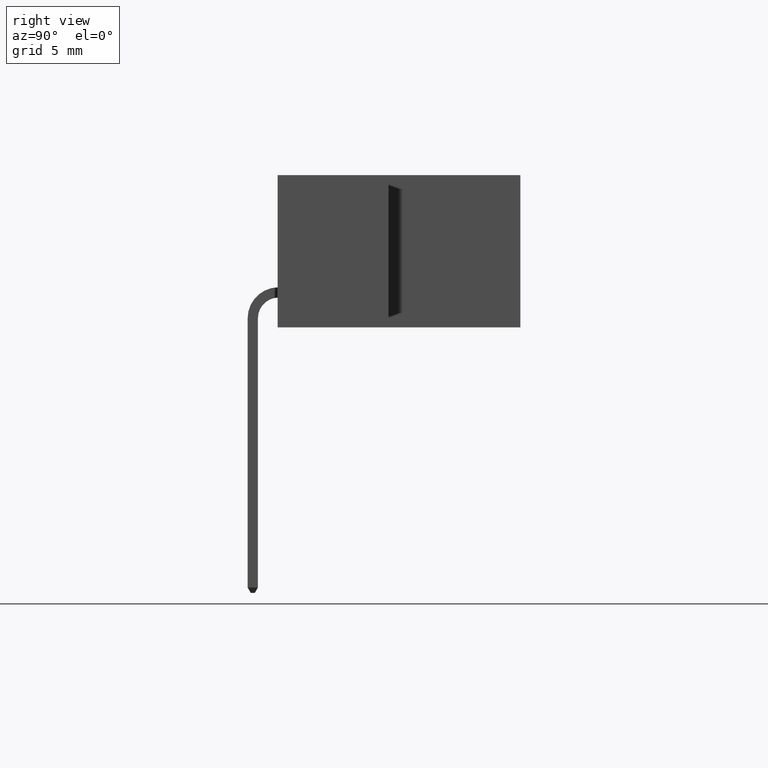
[diagram: clean part render]
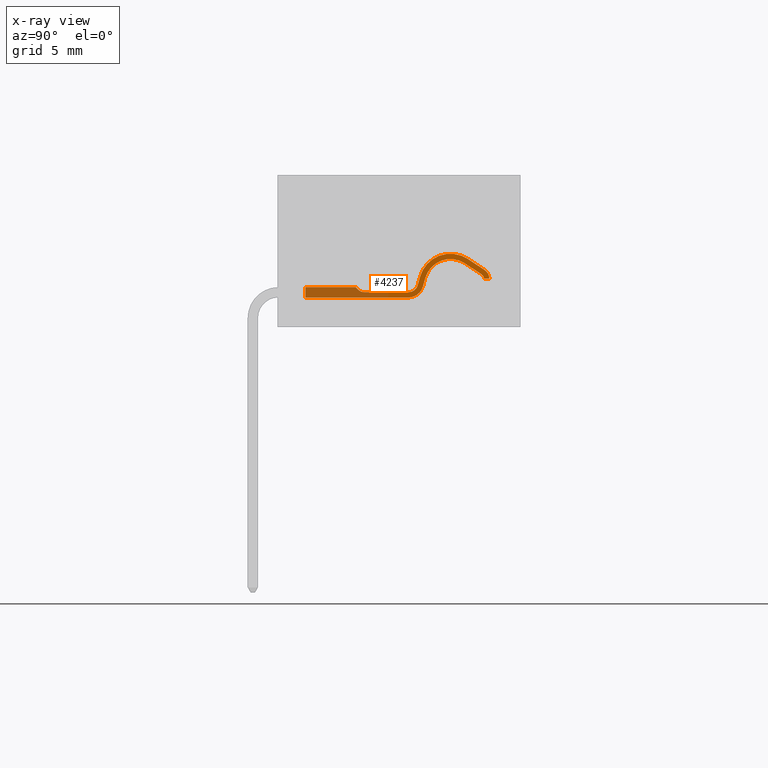
[diagram: x-ray — body ghosted, one internal face saturated and labeled with its STEP entity id]
A machine part, right view, then the same camera in x-ray: the body is ghosted and one INTERNAL B-rep face — a face not visible from any outside direction — is saturated and labeled: STEP entity #4237.
In plain terms, the highlighted planar face has unit normal (-1, 0, 0).
Its self-contained STEP definition (entity closure, byte-faithful):
#11 = CIRCLE ( 'NONE', #2944, 0.07649999999999998500 ) ;
#216 = ORIENTED_EDGE ( 'NONE', *, *, #6210, .F. ) ;
#237 = ORIENTED_EDGE ( 'NONE', *, *, #6021, .T. ) ;
#323 = VERTEX_POINT ( 'NONE', #4881 ) ;
#376 = DIRECTION ( 'NONE',  ( 1.000000000000000000, -4.105037543671027800E-013, 1.638563879710457600E-012 ) ) ;
#410 = DIRECTION ( 'NONE',  ( -1.000000000000000000, 4.103939916561599100E-013, -1.638611603453458800E-012 ) ) ;
#416 = VECTOR ( 'NONE', #5714, 39.37007874015748900 ) ;
#421 = DIRECTION ( 'NONE',  ( 1.638611603453288400E-012, -1.027382594658554100E-014, 1.000000000000000000 ) ) ;
#448 = CARTESIAN_POINT ( 'NONE',  ( 0.3300000000002101300, 0.01249999999986125900, -0.02499999999839900800 ) ) ;
#480 = CARTESIAN_POINT ( 'NONE',  ( 0.1860365644725496500, 0.1064634276654713200, -0.02500000000062109100 ) ) ;
#503 = ORIENTED_EDGE ( 'NONE', *, *, #5555, .F. ) ;
#524 = VERTEX_POINT ( 'NONE', #6538 ) ;
#531 = CARTESIAN_POINT ( 'NONE',  ( 0.3299999999999715900, 0.04899999999983343400, -0.02499999999829847400 ) ) ;
#721 = CARTESIAN_POINT ( 'NONE',  ( 0.1451768499526380200, 0.07965726579265157400, -0.02499999999847331300 ) ) ;
#726 = CARTESIAN_POINT ( 'NONE',  ( 0.2948401884420190400, 0.03920011983824214100, -0.02499999999818537700 ) ) ;
#872 = VERTEX_POINT ( 'NONE', #4946 ) ;
#875 = ORIENTED_EDGE ( 'NONE', *, *, #2604, .F. ) ;
#945 = DIRECTION ( 'NONE',  ( -1.000000000000000000, 4.104095712703949100E-013, -1.638476423977801500E-012 ) ) ;
#969 = DIRECTION ( 'NONE',  ( -1.638611603453463000E-012, -1.027382594524058700E-014, 1.000000000000000000 ) ) ;
#1003 = ORIENTED_EDGE ( 'NONE', *, *, #5497, .T. ) ;
#1010 = CARTESIAN_POINT ( 'NONE',  ( 0.3016911118967255400, 0.06303947485922985200, -0.02499999999918796300 ) ) ;
#1094 = ORIENTED_EDGE ( 'NONE', *, *, #5470, .T. ) ;
#1101 = CARTESIAN_POINT ( 'NONE',  ( 0.2891684392868649200, 0.05954910658250295300, -0.02499999999831923800 ) ) ;
#1181 = CARTESIAN_POINT ( 'NONE',  ( 0.3299999999999715900, 0.04899999999983343400, -0.02499999999829847400 ) ) ;
#1188 = LINE ( 'NONE', #5304, #2520 ) ;
#1197 = CARTESIAN_POINT ( 'NONE',  ( 0.09500000000039858500, 0.02500000000002944300, -0.02499999999791328500 ) ) ;
#1215 = VECTOR ( 'NONE', #7378, 39.37007874015748100 ) ;
#1400 = CIRCLE ( 'NONE', #2966, 0.02350000000000003500 ) ;
#1426 = LINE ( 'NONE', #2462, #1215 ) ;
#1446 = VERTEX_POINT ( 'NONE', #3297 ) ;
#1492 = VECTOR ( 'NONE', #7321, 39.37007874015748100 ) ;
#1591 = CIRCLE ( 'NONE', #2979, 0.02172792206135780400 ) ;
#1665 = ORIENTED_EDGE ( 'NONE', *, *, #5467, .T. ) ;
#1681 = ORIENTED_EDGE ( 'NONE', *, *, #5388, .T. ) ;
#1724 = CARTESIAN_POINT ( 'NONE',  ( 0.2891684392868649200, 0.05954910658250295300, -0.02499999999831923800 ) ) ;
#1875 = CARTESIAN_POINT ( 'NONE',  ( 0.4372132034357108500, 0.04722792206117109500, -0.02499999999768435700 ) ) ;
#1879 = VERTEX_POINT ( 'NONE', #726 ) ;
#1929 = DIRECTION ( 'NONE',  ( -1.638611603453288400E-012, 1.027382594658554100E-014, -1.000000000000000000 ) ) ;
#1968 = DIRECTION ( 'NONE',  ( -1.000000000000000000, 4.104494057409937700E-013, -1.638638251514609500E-012 ) ) ;
#2022 = VERTEX_POINT ( 'NONE', #480 ) ;
#2171 = CARTESIAN_POINT ( 'NONE',  ( 0.4582132034356362600, 0.03749999999975776200, -0.02499999999815887700 ) ) ;
#2246 = ORIENTED_EDGE ( 'NONE', *, *, #5407, .F. ) ;
#2286 = DIRECTION ( 'NONE',  ( 1.638611603453288400E-012, -1.027382594658554100E-014, 1.000000000000000000 ) ) ;
#2368 = DIRECTION ( 'NONE',  ( 1.000000000000000000, -4.104788723356833500E-013, 1.638641014007862000E-012 ) ) ;
#2431 = ORIENTED_EDGE ( 'NONE', *, *, #5485, .T. ) ;
#2462 = CARTESIAN_POINT ( 'NONE',  ( 0.3300000000002101300, 0.01249999999986125900, -0.02499999999839900800 ) ) ;
#2520 = VECTOR ( 'NONE', #410, 39.37007874015748100 ) ;
#2539 = DIRECTION ( 'NONE',  ( 0.2684898674432342800, -0.9632825084471918800, 4.498472090303872900E-013 ) ) ;
#2595 = ORIENTED_EDGE ( 'NONE', *, *, #5554, .T. ) ;
#2604 = EDGE_CURVE ( 'NONE', #1879, #5158, #4109, .T. ) ;
#2918 = AXIS2_PLACEMENT_3D ( 'NONE', #3674, #6452, #945 ) ;
#2919 = AXIS2_PLACEMENT_3D ( 'NONE', #3607, #3349, #6185 ) ;
#2940 = LINE ( 'NONE', #721, #4441 ) ;
#2944 = AXIS2_PLACEMENT_3D ( 'NONE', #6384, #1929, #6074 ) ;
#2961 = EDGE_CURVE ( 'NONE', #1446, #5471, #5707, .T. ) ;
#2964 = CARTESIAN_POINT ( 'NONE',  ( 0.3300000000000456500, 0.02549999999988431300, -0.02499999999797939500 ) ) ;
#2966 = AXIS2_PLACEMENT_3D ( 'NONE', #531, #421, #376 ) ;
#2979 = AXIS2_PLACEMENT_3D ( 'NONE', #1875, #3211, #6601 ) ;
#2988 = ORIENTED_EDGE ( 'NONE', *, *, #3909, .F. ) ;
#3047 = ORIENTED_EDGE ( 'NONE', *, *, #5511, .T. ) ;
#3064 = AXIS2_PLACEMENT_3D ( 'NONE', #3768, #3761, #1968 ) ;
#3117 = DIRECTION ( 'NONE',  ( 1.000000000000000000, -4.100356718673666700E-013, 1.638611603453452100E-012 ) ) ;
#3149 = VERTEX_POINT ( 'NONE', #1101 ) ;
#3211 = DIRECTION ( 'NONE',  ( 1.638611603453288400E-012, -1.027382594658554100E-014, 1.000000000000000000 ) ) ;
#3225 = LINE ( 'NONE', #4905, #1492 ) ;
#3261 = ORIENTED_EDGE ( 'NONE', *, *, #2961, .T. ) ;
#3284 = VERTEX_POINT ( 'NONE', #4574 ) ;
#3297 = CARTESIAN_POINT ( 'NONE',  ( 0.4582132034356362600, 0.03749999999975776200, -0.02499999999815887700 ) ) ;
#3349 = DIRECTION ( 'NONE',  ( -1.638611603453288400E-012, 1.027382594658554100E-014, -1.000000000000000000 ) ) ;
#3586 = CARTESIAN_POINT ( 'NONE',  ( 0.1462224658725554100, 0.05799999999995034800, -0.02499999999849352900 ) ) ;
#3607 = CARTESIAN_POINT ( 'NONE',  ( 0.1597132034359620700, 0.05749999999989687700, -0.02499999999926664400 ) ) ;
#3674 = CARTESIAN_POINT ( 'NONE',  ( 0.1597132034359620700, 0.05749999999989687700, -0.02499999999926664400 ) ) ;
#3761 = DIRECTION ( 'NONE',  ( -1.638611603453288400E-012, 1.027382594658554100E-014, -1.000000000000000000 ) ) ;
#3768 = CARTESIAN_POINT ( 'NONE',  ( 0.2280000000003233100, 0.04249999999984280900, -0.02499999999843834400 ) ) ;
#3846 = DIRECTION ( 'NONE',  ( 1.000000000000000000, -4.103939916561599100E-013, 1.638611603453458800E-012 ) ) ;
#3909 = EDGE_CURVE ( 'NONE', #5158, #7074, #1426, .T. ) ;
#3918 = LINE ( 'NONE', #1724, #416 ) ;
#3944 = CIRCLE ( 'NONE', #3064, 0.06350000000000001500 ) ;
#4047 = AXIS2_PLACEMENT_3D ( 'NONE', #1197, #969, #3846 ) ;
#4109 = CIRCLE ( 'NONE', #4540, 0.03650000000000000500 ) ;
#4157 = VERTEX_POINT ( 'NONE', #7774 ) ;
#4237 = ADVANCED_FACE ( 'NONE', ( #4279 ), #6606, .F. ) ;
#4240 = ORIENTED_EDGE ( 'NONE', *, *, #5514, .T. ) ;
#4279 = FACE_OUTER_BOUND ( 'NONE', #4311, .T. ) ;
#4311 = EDGE_LOOP ( 'NONE', ( #503, #2595, #5515, #4240, #3047, #1003, #2431, #1094, #1665, #237, #3261, #1681, #2988, #875, #4851, #2246, #216 ) ) ;
#4441 = VECTOR ( 'NONE', #6291, 39.37007874015748100 ) ;
#4540 = AXIS2_PLACEMENT_3D ( 'NONE', #1181, #2286, #2368 ) ;
#4574 = CARTESIAN_POINT ( 'NONE',  ( 0.3300000000000456500, 0.02549999999988431300, -0.02499999999797939500 ) ) ;
#4603 = DIRECTION ( 'NONE',  ( 1.000000000000000000, -4.103939916561603700E-013, 1.638576615646163000E-012 ) ) ;
#4719 = VERTEX_POINT ( 'NONE', #1010 ) ;
#4834 = VERTEX_POINT ( 'NONE', #5622 ) ;
#4851 = ORIENTED_EDGE ( 'NONE', *, *, #6379, .F. ) ;
#4881 = CARTESIAN_POINT ( 'NONE',  ( 0.4372132034354676000, 0.02549999999985122500, -0.02499999999777669300 ) ) ;
#4905 = CARTESIAN_POINT ( 'NONE',  ( 0.1523078912838012600, 0.06878766370564136400, -0.02499999999959828800 ) ) ;
#4946 = CARTESIAN_POINT ( 'NONE',  ( 0.3073628610519116300, 0.04269048811493035600, -0.02499999999888527500 ) ) ;
#4962 = DIRECTION ( 'NONE',  ( 4.103939916561338600E-013, -1.000000000000000000, 1.027382594658596700E-014 ) ) ;
#5158 = VERTEX_POINT ( 'NONE', #448 ) ;
#5304 = CARTESIAN_POINT ( 'NONE',  ( 0.1332132034357875200, 0.05799999999999252300, -0.02499999999870606800 ) ) ;
#5357 = VERTEX_POINT ( 'NONE', #5743 ) ;
#5388 = EDGE_CURVE ( 'NONE', #5471, #7074, #5746, .T. ) ;
#5407 = EDGE_CURVE ( 'NONE', #4834, #3149, #3944, .T. ) ;
#5467 = EDGE_CURVE ( 'NONE', #323, #4157, #1591, .T. ) ;
#5470 = EDGE_CURVE ( 'NONE', #3284, #323, #7685, .T. ) ;
#5471 = VERTEX_POINT ( 'NONE', #7398 ) ;
#5485 = EDGE_CURVE ( 'NONE', #872, #3284, #1400, .T. ) ;
#5497 = EDGE_CURVE ( 'NONE', #4719, #872, #6156, .T. ) ;
#5511 = EDGE_CURVE ( 'NONE', #2022, #4719, #11, .T. ) ;
#5514 = EDGE_CURVE ( 'NONE', #5532, #2022, #2940, .T. ) ;
#5515 = ORIENTED_EDGE ( 'NONE', *, *, #5541, .T. ) ;
#5532 = VERTEX_POINT ( 'NONE', #5967 ) ;
#5541 = EDGE_CURVE ( 'NONE', #524, #5532, #5973, .T. ) ;
#5554 = EDGE_CURVE ( 'NONE', #5563, #524, #1188, .T. ) ;
#5555 = EDGE_CURVE ( 'NONE', #5563, #5357, #7237, .T. ) ;
#5563 = VERTEX_POINT ( 'NONE', #3586 ) ;
#5622 = CARTESIAN_POINT ( 'NONE',  ( 0.1931676058041325900, 0.09559382557847294300, -0.02500000000016378000 ) ) ;
#5707 = LINE ( 'NONE', #7319, #5860 ) ;
#5714 = DIRECTION ( 'NONE',  ( 0.2684898674432342800, -0.9632825084471918800, 4.498472090303872900E-013 ) ) ;
#5743 = CARTESIAN_POINT ( 'NONE',  ( 0.1523078912838012600, 0.06878766370564136400, -0.02499999999959828800 ) ) ;
#5746 = LINE ( 'NONE', #6362, #6995 ) ;
#5860 = VECTOR ( 'NONE', #4603, 39.37007874015748100 ) ;
#5888 = DIRECTION ( 'NONE',  ( 0.7071067811865292500, 0.7071067811865656700, 1.151408684536651600E-012 ) ) ;
#5967 = CARTESIAN_POINT ( 'NONE',  ( 0.1451768499526380200, 0.07965726579265157400, -0.02499999999847331300 ) ) ;
#5973 = CIRCLE ( 'NONE', #2919, 0.02649999999999999200 ) ;
#6021 = EDGE_CURVE ( 'NONE', #4157, #1446, #6322, .T. ) ;
#6074 = DIRECTION ( 'NONE',  ( -1.000000000000000000, 4.104467696363219400E-013, -1.638606618258546600E-012 ) ) ;
#6156 = LINE ( 'NONE', #6767, #7400 ) ;
#6185 = DIRECTION ( 'NONE',  ( -1.000000000000000000, 4.104215028217302000E-013, -1.638625568369490400E-012 ) ) ;
#6210 = EDGE_CURVE ( 'NONE', #5357, #4834, #3225, .T. ) ;
#6291 = DIRECTION ( 'NONE',  ( 0.8361232374576324000, 0.5485416408836869500, 1.364445617473245900E-012 ) ) ;
#6322 = LINE ( 'NONE', #2171, #7542 ) ;
#6330 = VECTOR ( 'NONE', #3117, 39.37007874015748100 ) ;
#6362 = CARTESIAN_POINT ( 'NONE',  ( 0.5802132034356880500, 0.03749999999973826400, -0.02499999999860116500 ) ) ;
#6379 = EDGE_CURVE ( 'NONE', #3149, #1879, #3918, .T. ) ;
#6384 = CARTESIAN_POINT ( 'NONE',  ( 0.2280000000003233100, 0.04249999999984280900, -0.02499999999843834400 ) ) ;
#6452 = DIRECTION ( 'NONE',  ( -1.638611603453288400E-012, 1.027382594658554100E-014, -1.000000000000000000 ) ) ;
#6538 = CARTESIAN_POINT ( 'NONE',  ( 0.1332179208368038900, 0.05799999999997275400, -0.02499999999870606800 ) ) ;
#6564 = CARTESIAN_POINT ( 'NONE',  ( 0.5802132034356142200, 0.01249999999973863300, -0.02499999999913004800 ) ) ;
#6601 = DIRECTION ( 'NONE',  ( 1.000000000000000000, -4.105864831030401300E-013, 1.638613328020314800E-012 ) ) ;
#6606 = PLANE ( 'NONE',  #4047 ) ;
#6767 = CARTESIAN_POINT ( 'NONE',  ( 0.3016911118967255400, 0.06303947485922985200, -0.02499999999918796300 ) ) ;
#6995 = VECTOR ( 'NONE', #4962, 39.37007874015748100 ) ;
#7074 = VERTEX_POINT ( 'NONE', #6564 ) ;
#7237 = CIRCLE ( 'NONE', #2918, 0.01350000000000000700 ) ;
#7319 = CARTESIAN_POINT ( 'NONE',  ( 0.4582132034356362600, 0.03749999999975776200, -0.02499999999815887700 ) ) ;
#7321 = DIRECTION ( 'NONE',  ( 0.8361232374576324000, 0.5485416408836869500, 1.364445617473245900E-012 ) ) ;
#7378 = DIRECTION ( 'NONE',  ( 1.000000000000000000, -4.100356718673666700E-013, 1.638611603453452100E-012 ) ) ;
#7398 = CARTESIAN_POINT ( 'NONE',  ( 0.5802132034356880500, 0.03749999999973826400, -0.02499999999860116500 ) ) ;
#7400 = VECTOR ( 'NONE', #2539, 39.37007874015748900 ) ;
#7542 = VECTOR ( 'NONE', #5888, 39.37007874015748100 ) ;
#7685 = LINE ( 'NONE', #2964, #6330 ) ;
#7774 = CARTESIAN_POINT ( 'NONE',  ( 0.4525771644660766000, 0.03186396103059131000, -0.02499999999759912300 ) ) ;